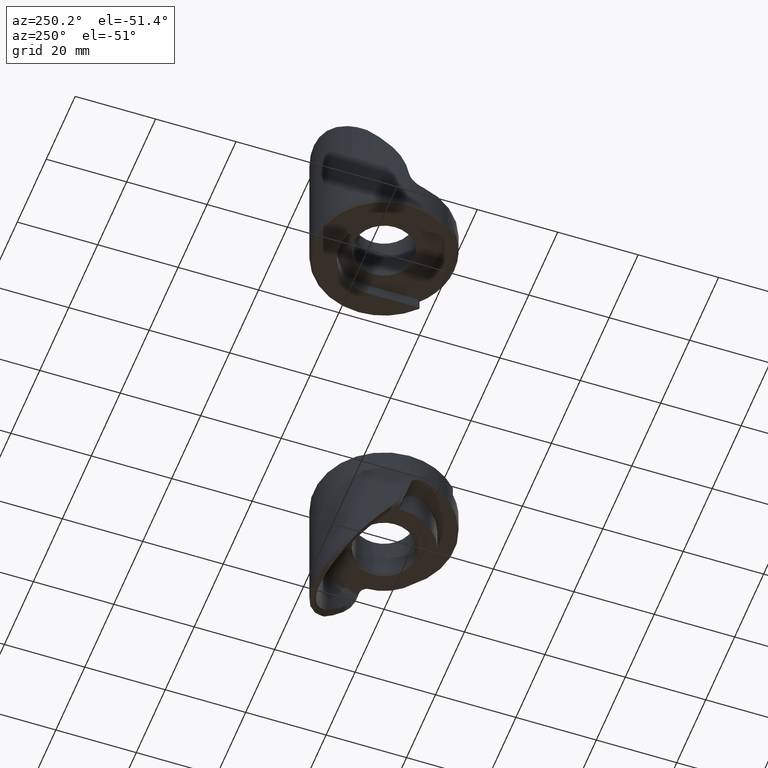
[diagram: clean part render]
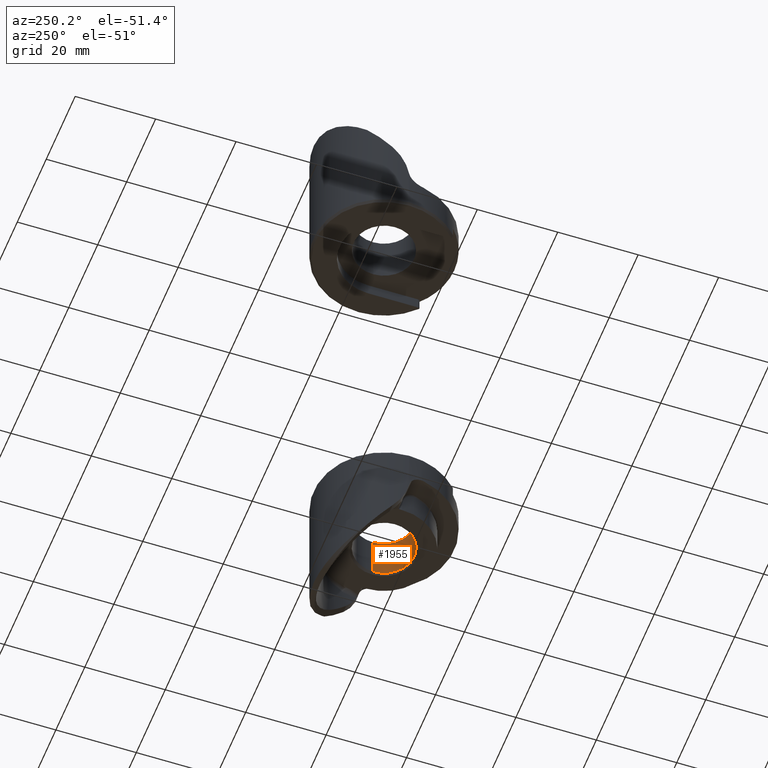
[diagram: same view with one face highlighted and labeled with its STEP entity id]
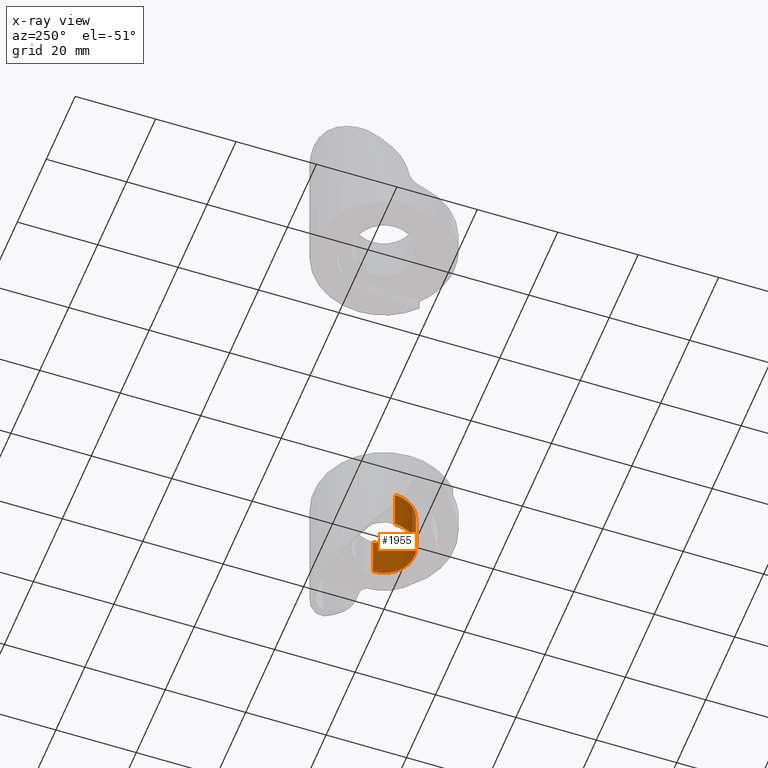
[diagram: x-ray of the same camera — body ghosted, the highlighted face saturated]
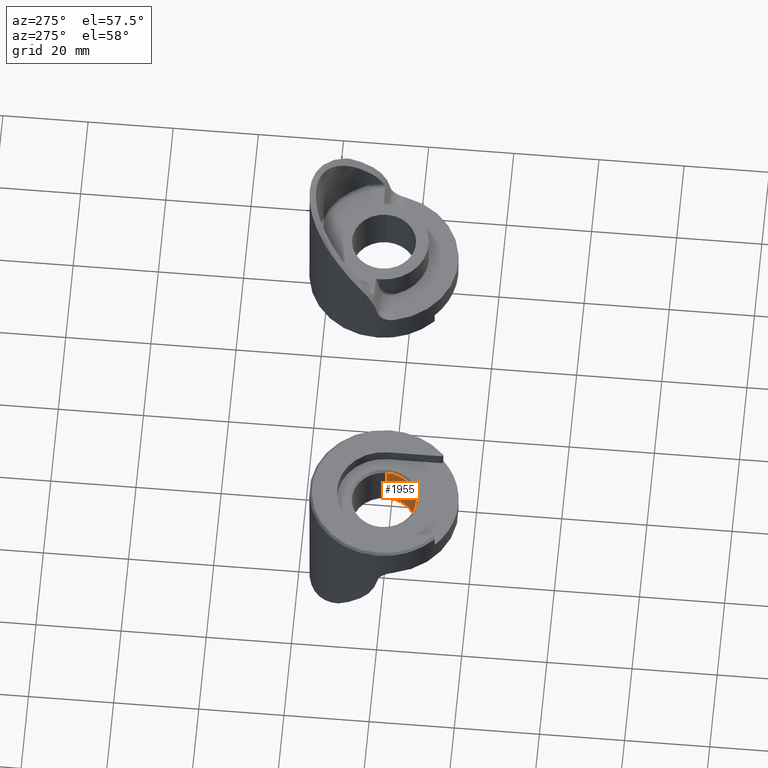
[diagram: same view with one face highlighted and labeled with its STEP entity id]
A machine part, auxiliary view. The second image highlights one B-rep face of the part: STEP entity #1955.
The next image is the same camera in x-ray: the body ghosted, the highlighted face saturated — about 0% of this face is hidden behind the body in this view.
A second angle (auxiliary view) of the same face is appended — the face is thin or edge-on in the first view.
In plain terms, the highlighted cylindrical surface (edge-blend (fillet) strip) has radius 7.5438 mm, axis along (0, -0, -1).
Its self-contained STEP definition (entity closure, byte-faithful):
#135 = DIRECTION ( 'NONE',  ( -0.0000000000000000000, -0.0000000000000000000, 1.000000000000000000 ) ) ;
#156 = CARTESIAN_POINT ( 'NONE',  ( -0.2969999999999999900, 3.637200993467638400E-017, 0.0000000000000000000 ) ) ;
#382 = DIRECTION ( 'NONE',  ( 1.000000000000000000, 0.0000000000000000000, 0.0000000000000000000 ) ) ;
#513 = ORIENTED_EDGE ( 'NONE', *, *, #2057, .T. ) ;
#533 = DIRECTION ( 'NONE',  ( -0.0000000000000000000, -0.0000000000000000000, 1.000000000000000000 ) ) ;
#620 = DIRECTION ( 'NONE',  ( 0.0000000000000000000, 0.0000000000000000000, -1.000000000000000000 ) ) ;
#724 = VERTEX_POINT ( 'NONE', #2170 ) ;
#748 = CARTESIAN_POINT ( 'NONE',  ( 0.0000000000000000000, 0.0000000000000000000, 0.1379999999999998700 ) ) ;
#990 = CARTESIAN_POINT ( 'NONE',  ( -0.2969999999999999900, 3.637200993467638400E-017, 0.1379999999999998700 ) ) ;
#996 = CARTESIAN_POINT ( 'NONE',  ( 0.2969999999999999900, 0.0000000000000000000, 0.0000000000000000000 ) ) ;
#1014 = CYLINDRICAL_SURFACE ( 'NONE', #2507, 0.2969999999999999900 ) ;
#1263 = CARTESIAN_POINT ( 'NONE',  ( 0.0000000000000000000, 0.0000000000000000000, 0.0000000000000000000 ) ) ;
#1274 = DIRECTION ( 'NONE',  ( -0.0000000000000000000, -0.0000000000000000000, 1.000000000000000000 ) ) ;
#1308 = DIRECTION ( 'NONE',  ( 1.000000000000000000, 0.0000000000000000000, 0.0000000000000000000 ) ) ;
#1316 = ORIENTED_EDGE ( 'NONE', *, *, #2070, .T. ) ;
#1364 = VERTEX_POINT ( 'NONE', #990 ) ;
#1365 = LINE ( 'NONE', #996, #2589 ) ;
#1394 = LINE ( 'NONE', #156, #1907 ) ;
#1432 = DIRECTION ( 'NONE',  ( -1.000000000000000000, 0.0000000000000000000, 0.0000000000000000000 ) ) ;
#1497 = CARTESIAN_POINT ( 'NONE',  ( -0.2969999999999999900, 3.637200993467638400E-017, 0.5699999999999992900 ) ) ;
#1640 = DIRECTION ( 'NONE',  ( 0.0000000000000000000, 0.0000000000000000000, 1.000000000000000000 ) ) ;
#1772 = CARTESIAN_POINT ( 'NONE',  ( 0.2969999999999999900, 0.0000000000000000000, 0.1379999999999998700 ) ) ;
#1897 = VERTEX_POINT ( 'NONE', #1497 ) ;
#1907 = VECTOR ( 'NONE', #533, 39.37007874015748100 ) ;
#1955 = ADVANCED_FACE ( 'NONE', ( #2763 ), #1014, .F. ) ;
#2057 = EDGE_CURVE ( 'NONE', #1364, #1897, #1394, .T. ) ;
#2070 = EDGE_CURVE ( 'NONE', #2607, #1364, #2485, .T. ) ;
#2170 = CARTESIAN_POINT ( 'NONE',  ( 0.2969999999999999900, 0.0000000000000000000, 0.5699999999999992900 ) ) ;
#2265 = EDGE_LOOP ( 'NONE', ( #1316, #513, #2775, #2825 ) ) ;
#2309 = EDGE_CURVE ( 'NONE', #1897, #724, #2659, .T. ) ;
#2400 = EDGE_CURVE ( 'NONE', #2607, #724, #1365, .T. ) ;
#2485 = CIRCLE ( 'NONE', #2811, 0.2969999999999999900 ) ;
#2507 = AXIS2_PLACEMENT_3D ( 'NONE', #1263, #1274, #1308 ) ;
#2589 = VECTOR ( 'NONE', #135, 39.37007874015748100 ) ;
#2607 = VERTEX_POINT ( 'NONE', #1772 ) ;
#2659 = CIRCLE ( 'NONE', #2699, 0.2969999999999999900 ) ;
#2699 = AXIS2_PLACEMENT_3D ( 'NONE', #2711, #1640, #382 ) ;
#2711 = CARTESIAN_POINT ( 'NONE',  ( 0.0000000000000000000, 0.0000000000000000000, 0.5699999999999992900 ) ) ;
#2763 = FACE_OUTER_BOUND ( 'NONE', #2265, .T. ) ;
#2775 = ORIENTED_EDGE ( 'NONE', *, *, #2309, .T. ) ;
#2811 = AXIS2_PLACEMENT_3D ( 'NONE', #748, #620, #1432 ) ;
#2825 = ORIENTED_EDGE ( 'NONE', *, *, #2400, .F. ) ;